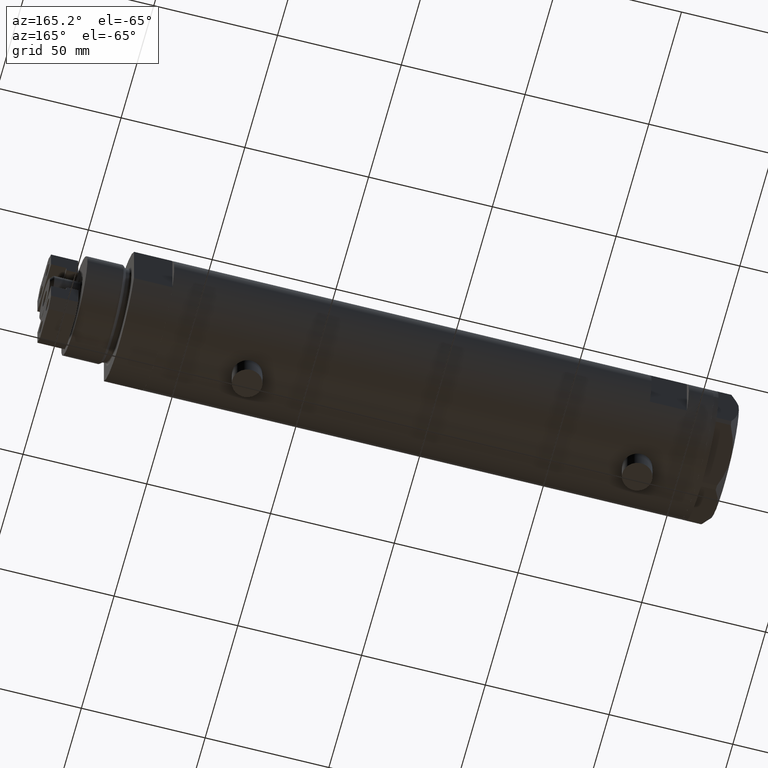
[diagram: clean part render]
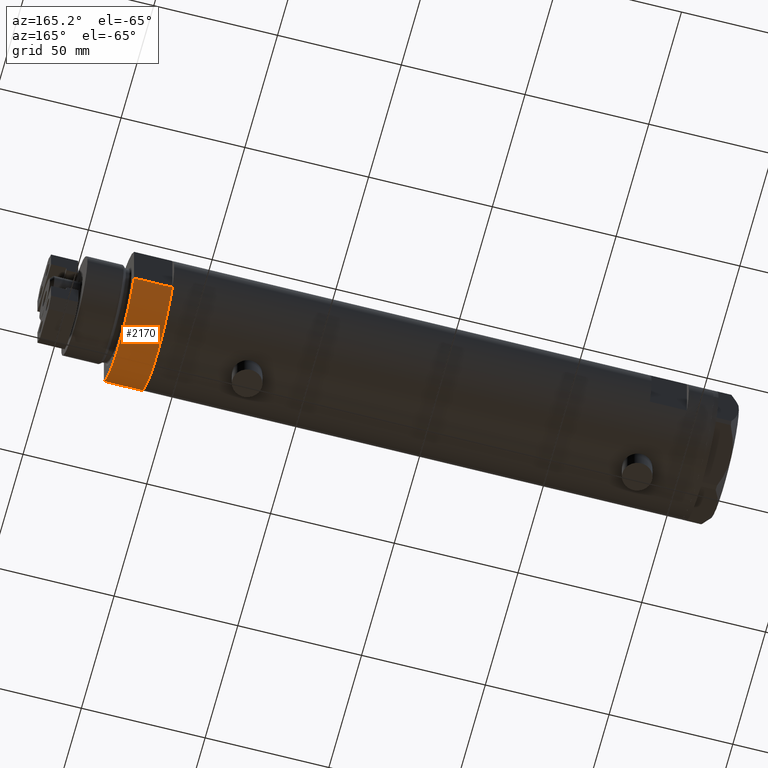
[diagram: same view with one face highlighted and labeled with its STEP entity id]
A machine part, auxiliary view. The second image highlights one B-rep face of the part: STEP entity #2170.
In plain terms, the highlighted cylindrical surface (partial cylindrical patch) has radius 26 mm, axis along (-1, -0, 0).
Its self-contained STEP definition (entity closure, byte-faithful):
#33 = ORIENTED_EDGE ( 'NONE', *, *, #3371, .F. ) ;
#69 = FACE_OUTER_BOUND ( 'NONE', #3609, .T. ) ;
#317 = VERTEX_POINT ( 'NONE', #4305 ) ;
#392 = AXIS2_PLACEMENT_3D ( 'NONE', #3515, #5248, #4404 ) ;
#1033 = CARTESIAN_POINT ( 'NONE',  ( 12.12435565298215323, 23.00000000000000355, 0.000000000000000000 ) ) ;
#1056 = CARTESIAN_POINT ( 'NONE',  ( 12.12435565298215323, -22.99999999999999645, 0.000000000000000000 ) ) ;
#1095 = VERTEX_POINT ( 'NONE', #4374 ) ;
#1132 = DIRECTION ( 'NONE',  ( 1.000000000000000000, 0.000000000000000000, 0.000000000000000000 ) ) ;
#1250 = VECTOR ( 'NONE', #4385, 1000.000000000000000 ) ;
#1480 = VECTOR ( 'NONE', #3693, 1000.000000000000000 ) ;
#1805 = CYLINDRICAL_SURFACE ( 'NONE', #392, 26.00000000000000355 ) ;
#1954 = DIRECTION ( 'NONE',  ( 0.000000000000000000, 0.000000000000000000, 1.000000000000000000 ) ) ;
#1989 = ORIENTED_EDGE ( 'NONE', *, *, #5287, .T. ) ;
#2141 = AXIS2_PLACEMENT_3D ( 'NONE', #2889, #1954, #1132 ) ;
#2155 = VERTEX_POINT ( 'NONE', #3062 ) ;
#2170 = ADVANCED_FACE ( 'NONE', ( #69 ), #1805, .T. ) ;
#2272 = CARTESIAN_POINT ( 'NONE',  ( 0.000000000000000000, 0.000000000000000000, 0.000000000000000000 ) ) ;
#2354 = CIRCLE ( 'NONE', #3883, 26.00000000000000355 ) ;
#2568 = CIRCLE ( 'NONE', #2141, 26.00000000000000355 ) ;
#2585 = ORIENTED_EDGE ( 'NONE', *, *, #3393, .F. ) ;
#2889 = CARTESIAN_POINT ( 'NONE',  ( 0.000000000000000000, 0.000000000000000000, 15.50000000000000000 ) ) ;
#3062 = CARTESIAN_POINT ( 'NONE',  ( 12.12435565298214080, 23.00000000000000355, 0.000000000000000000 ) ) ;
#3100 = DIRECTION ( 'NONE',  ( 0.000000000000000000, 0.000000000000000000, 1.000000000000000000 ) ) ;
#3371 = EDGE_CURVE ( 'NONE', #317, #1095, #2568, .T. ) ;
#3393 = EDGE_CURVE ( 'NONE', #4314, #317, #4567, .T. ) ;
#3515 = CARTESIAN_POINT ( 'NONE',  ( 0.000000000000000000, 0.000000000000000000, 15.50000000000000000 ) ) ;
#3609 = EDGE_LOOP ( 'NONE', ( #33, #2585, #1989, #4221 ) ) ;
#3612 = LINE ( 'NONE', #1033, #1250 ) ;
#3693 = DIRECTION ( 'NONE',  ( -0.000000000000000000, -0.000000000000000000, 1.000000000000000000 ) ) ;
#3883 = AXIS2_PLACEMENT_3D ( 'NONE', #2272, #3100, #3984 ) ;
#3984 = DIRECTION ( 'NONE',  ( 1.000000000000000000, 0.000000000000000000, 0.000000000000000000 ) ) ;
#4221 = ORIENTED_EDGE ( 'NONE', *, *, #5259, .T. ) ;
#4305 = CARTESIAN_POINT ( 'NONE',  ( 12.12435565298215323, -22.99999999999999645, 15.50000000000000000 ) ) ;
#4314 = VERTEX_POINT ( 'NONE', #1056 ) ;
#4374 = CARTESIAN_POINT ( 'NONE',  ( 12.12435565298214790, 23.00000000000000355, 15.50000000000000000 ) ) ;
#4385 = DIRECTION ( 'NONE',  ( -0.000000000000000000, -0.000000000000000000, 1.000000000000000000 ) ) ;
#4404 = DIRECTION ( 'NONE',  ( -1.000000000000000000, 0.000000000000000000, 0.000000000000000000 ) ) ;
#4567 = LINE ( 'NONE', #4932, #1480 ) ;
#4932 = CARTESIAN_POINT ( 'NONE',  ( 12.12435565298215323, -22.99999999999999645, 0.000000000000000000 ) ) ;
#5248 = DIRECTION ( 'NONE',  ( -0.000000000000000000, -0.000000000000000000, -1.000000000000000000 ) ) ;
#5259 = EDGE_CURVE ( 'NONE', #2155, #1095, #3612, .T. ) ;
#5287 = EDGE_CURVE ( 'NONE', #4314, #2155, #2354, .T. ) ;